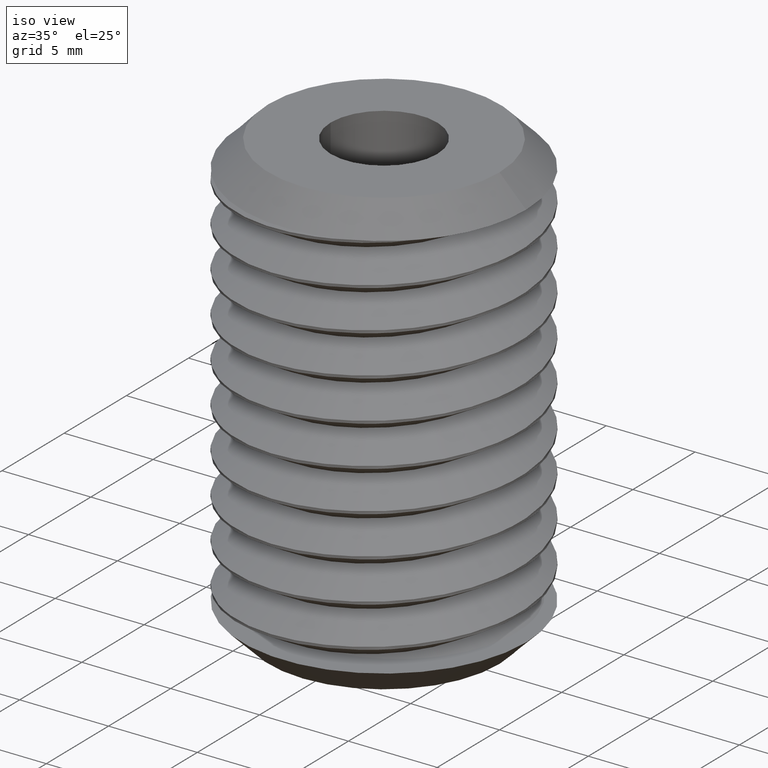
[diagram: clean part render]
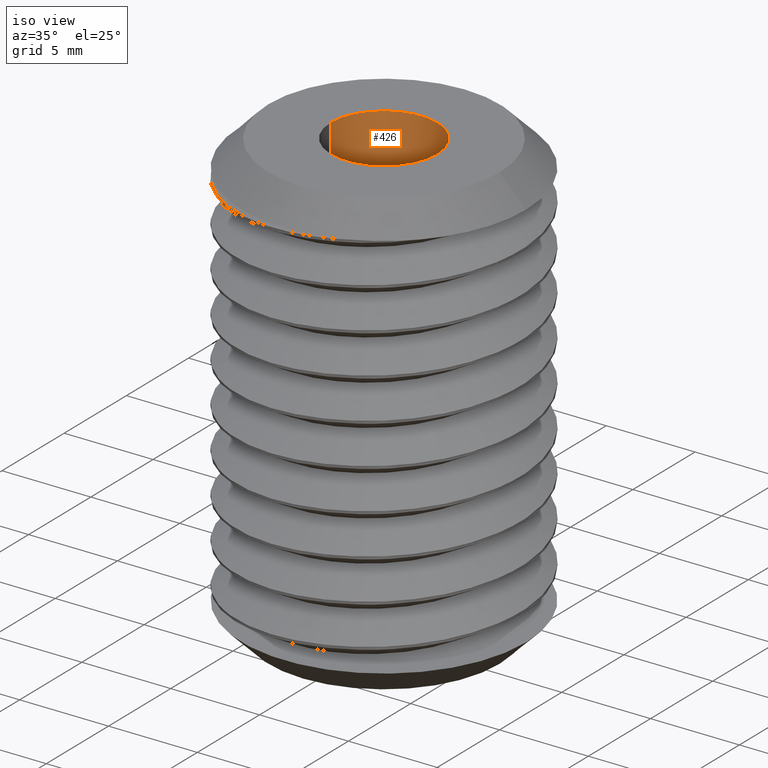
[diagram: same view with one face highlighted and labeled with its STEP entity id]
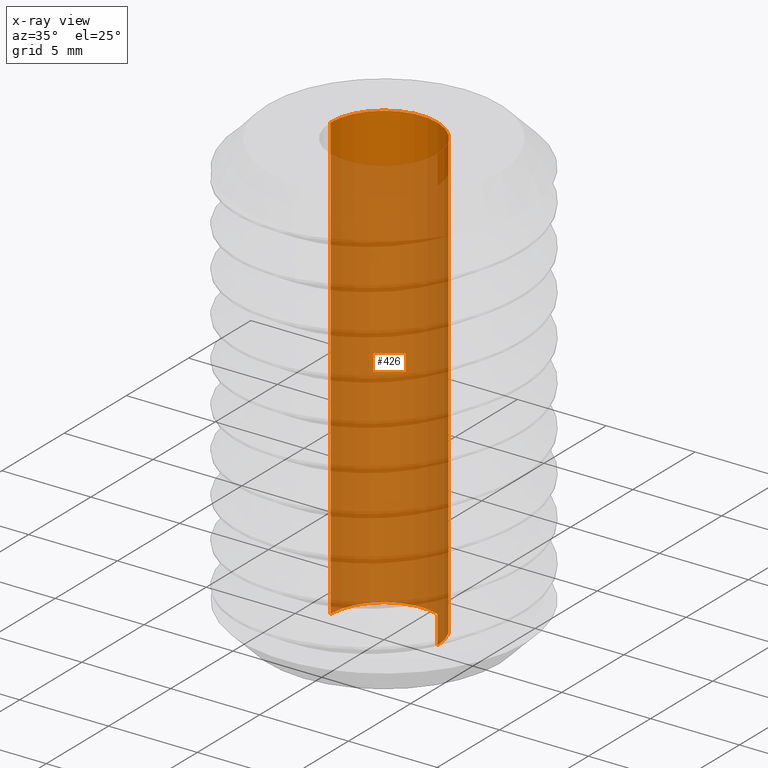
[diagram: x-ray of the same camera — body ghosted, the highlighted face saturated]
A machine part, iso view. The second image highlights one B-rep face of the part: STEP entity #426.
The next image is the same camera in x-ray: the body ghosted, the highlighted face saturated — about 90% of this face is hidden behind the body in this view.
In plain terms, the highlighted cylindrical surface (partial cylindrical patch) has radius 3 mm, axis along (0, 0, -1).
Its self-contained STEP definition (entity closure, byte-faithful):
#116 = AXIS2_PLACEMENT_3D ( 'NONE', #3282, #3283, #3284 ) ;
#135 = AXIS2_PLACEMENT_3D ( 'NONE', #2242, #2243, #2244 ) ;
#136 = AXIS2_PLACEMENT_3D ( 'NONE', #2554, #2555, #2556 ) ;
#398 = CARTESIAN_POINT ( 'NONE',  ( 3.000000000000000000, 3.673940397442059900E-016, 0.0000000000000000000 ) ) ;
#399 = DIRECTION ( 'NONE',  ( 0.0000000000000000000, 0.0000000000000000000, -1.000000000000000000 ) ) ;
#403 = CARTESIAN_POINT ( 'NONE',  ( -3.000000000000000000, 0.0000000000000000000, 0.0000000000000000000 ) ) ;
#404 = DIRECTION ( 'NONE',  ( 0.0000000000000000000, 0.0000000000000000000, -1.000000000000000000 ) ) ;
#426 = ADVANCED_FACE ( 'NONE', ( #1207 ), #1208, .F. ) ;
#444 = EDGE_CURVE ( 'NONE', #3406, #3403, #1323, .T. ) ;
#446 = EDGE_CURVE ( 'NONE', #3413, #3418, #1325, .T. ) ;
#457 = EDGE_CURVE ( 'NONE', #3406, #3413, #1231, .T. ) ;
#465 = EDGE_CURVE ( 'NONE', #3418, #3403, #1233, .T. ) ;
#1207 = FACE_OUTER_BOUND ( 'NONE', #1407, .T. ) ;
#1208 = CYLINDRICAL_SURFACE ( 'NONE', #116, 3.000000000000000000 ) ;
#1221 = VECTOR ( 'NONE', #399, 1000.000000000000000 ) ;
#1223 = VECTOR ( 'NONE', #404, 1000.000000000000000 ) ;
#1231 = CIRCLE ( 'NONE', #135, 3.000000000000000000 ) ;
#1233 = CIRCLE ( 'NONE', #136, 3.000000000000000000 ) ;
#1323 = LINE ( 'NONE', #398, #1221 ) ;
#1325 = LINE ( 'NONE', #403, #1223 ) ;
#1407 = EDGE_LOOP ( 'NONE', ( #1450, #1449, #1448, #1447 ) ) ;
#1447 = ORIENTED_EDGE ( 'NONE', *, *, #465, .T. ) ;
#1448 = ORIENTED_EDGE ( 'NONE', *, *, #446, .T. ) ;
#1449 = ORIENTED_EDGE ( 'NONE', *, *, #457, .T. ) ;
#1450 = ORIENTED_EDGE ( 'NONE', *, *, #444, .F. ) ;
#2067 = CARTESIAN_POINT ( 'NONE',  ( 3.000000000000000000, 3.673940397442059900E-016, -25.00000000000000000 ) ) ;
#2070 = CARTESIAN_POINT ( 'NONE',  ( 3.000000000000000000, 3.673940397442059900E-016, 0.0000000000000000000 ) ) ;
#2077 = CARTESIAN_POINT ( 'NONE',  ( -3.000000000000000000, 0.0000000000000000000, 0.0000000000000000000 ) ) ;
#2082 = CARTESIAN_POINT ( 'NONE',  ( -3.000000000000000000, 0.0000000000000000000, -25.00000000000000000 ) ) ;
#2242 = CARTESIAN_POINT ( 'NONE',  ( 0.0000000000000000000, 0.0000000000000000000, 0.0000000000000000000 ) ) ;
#2243 = DIRECTION ( 'NONE',  ( -0.0000000000000000000, -0.0000000000000000000, 1.000000000000000000 ) ) ;
#2244 = DIRECTION ( 'NONE',  ( -1.000000000000000000, 0.0000000000000000000, 0.0000000000000000000 ) ) ;
#2554 = CARTESIAN_POINT ( 'NONE',  ( 0.0000000000000000000, 0.0000000000000000000, -25.00000000000000000 ) ) ;
#2555 = DIRECTION ( 'NONE',  ( 0.0000000000000000000, 0.0000000000000000000, -1.000000000000000000 ) ) ;
#2556 = DIRECTION ( 'NONE',  ( -1.000000000000000000, 0.0000000000000000000, 0.0000000000000000000 ) ) ;
#3282 = CARTESIAN_POINT ( 'NONE',  ( 0.0000000000000000000, 0.0000000000000000000, 0.0000000000000000000 ) ) ;
#3283 = DIRECTION ( 'NONE',  ( 0.0000000000000000000, 0.0000000000000000000, -1.000000000000000000 ) ) ;
#3284 = DIRECTION ( 'NONE',  ( -1.000000000000000000, 0.0000000000000000000, 0.0000000000000000000 ) ) ;
#3403 = VERTEX_POINT ( 'NONE', #2067 ) ;
#3406 = VERTEX_POINT ( 'NONE', #2070 ) ;
#3413 = VERTEX_POINT ( 'NONE', #2077 ) ;
#3418 = VERTEX_POINT ( 'NONE', #2082 ) ;